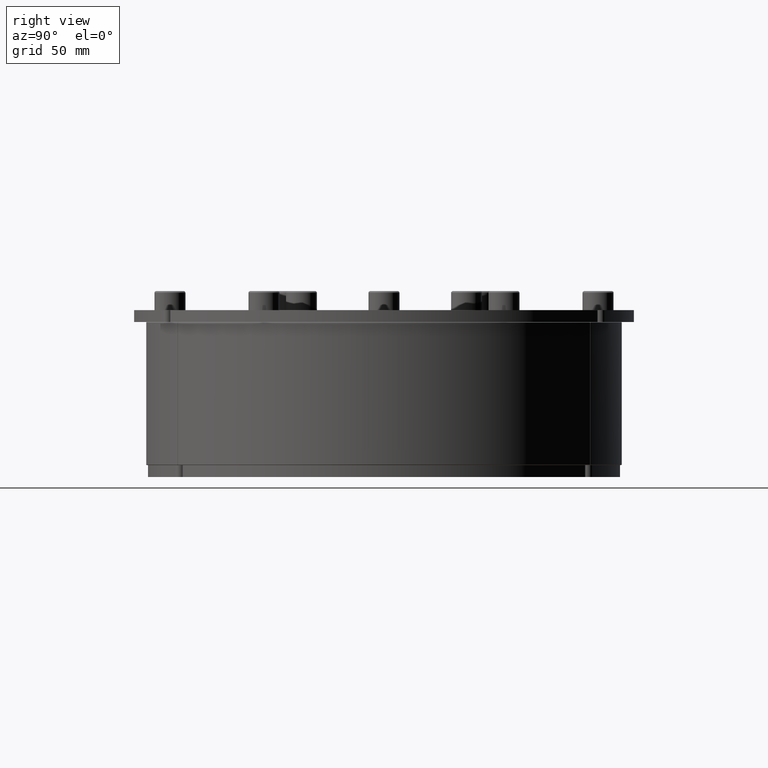
[diagram: clean part render]
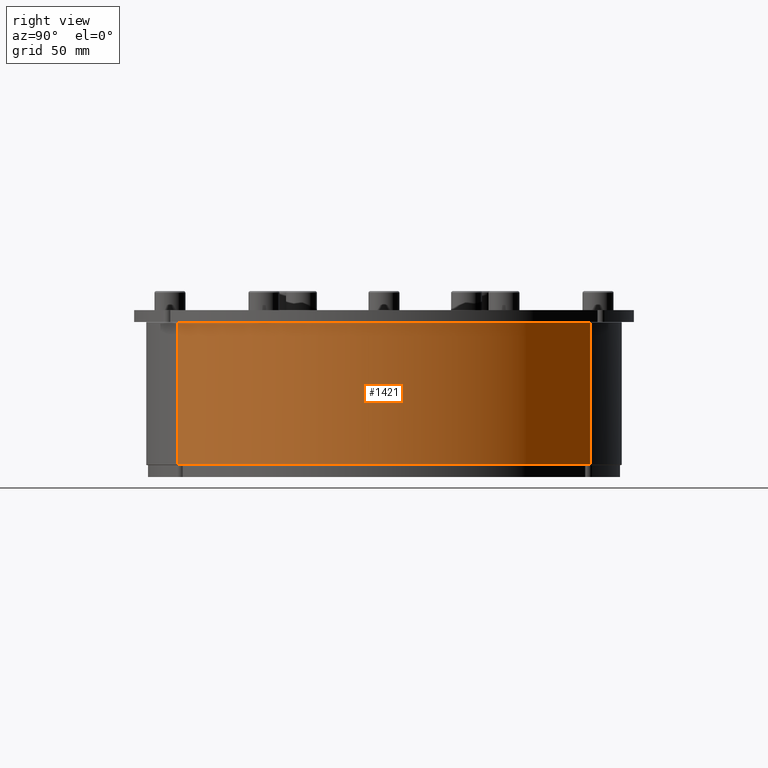
[diagram: same view with one face highlighted and labeled with its STEP entity id]
A machine part, right view. The second image highlights one B-rep face of the part: STEP entity #1421.
In plain terms, the highlighted cylindrical surface (partial cylindrical patch) has radius 100 mm, axis along (0, 0, 1).
Its self-contained STEP definition (entity closure, byte-faithful):
#582=CARTESIAN_POINT('',(49.739184254084925,86.752599671353877,0.3));
#583=VERTEX_POINT('',#582);
#705=CARTESIAN_POINT('',(-99.999547286776476,0.300902708124351,0.3));
#706=VERTEX_POINT('',#705);
#747=CARTESIAN_POINT('',(49.739184254084932,86.752599671353892,59.699999999999996));
#748=VERTEX_POINT('',#747);
#779=CARTESIAN_POINT('',(49.739184254084925,86.752599671353877,0.3));
#780=DIRECTION('',(0.0,0.0,1.0));
#781=VECTOR('',#780,59.399999999999999);
#782=LINE('',#779,#781);
#783=EDGE_CURVE('',#583,#748,#782,.T.);
#966=CARTESIAN_POINT('',(-99.999547286776476,0.300902708124367,59.699999999999996));
#967=VERTEX_POINT('',#966);
#1000=CARTESIAN_POINT('',(-99.999547286776476,0.300902708124367,59.699999999999996));
#1001=DIRECTION('',(0.0,0.0,-1.0));
#1002=VECTOR('',#1001,59.399999999999999);
#1003=LINE('',#1000,#1002);
#1004=EDGE_CURVE('',#967,#706,#1003,.T.);
#1184=CARTESIAN_POINT('',(0.0,0.0,59.699999999999996));
#1185=DIRECTION('',(0.0,0.0,1.0));
#1186=DIRECTION('',(-0.5,0.866025403784439,0.0));
#1187=AXIS2_PLACEMENT_3D('',#1184,#1185,#1186);
#1188=CIRCLE('',#1187,99.999999999999986);
#1189=EDGE_CURVE('',#748,#967,#1188,.T.);
#1238=CARTESIAN_POINT('',(0.0,0.0,0.3));
#1239=DIRECTION('',(0.0,0.0,-1.0));
#1240=DIRECTION('',(-0.5,0.866025403784439,0.0));
#1241=AXIS2_PLACEMENT_3D('',#1238,#1239,#1240);
#1242=CIRCLE('',#1241,99.999999999999986);
#1243=EDGE_CURVE('',#706,#583,#1242,.T.);
#1410=CARTESIAN_POINT('',(0.0,0.0,0.0));
#1411=DIRECTION('',(0.0,0.0,1.0));
#1412=DIRECTION('',(-0.5,-0.866025403784439,0.0));
#1413=AXIS2_PLACEMENT_3D('',#1410,#1411,#1412);
#1414=CYLINDRICAL_SURFACE('',#1413,100.0);
#1415=ORIENTED_EDGE('',*,*,#1004,.F.);
#1416=ORIENTED_EDGE('',*,*,#1189,.F.);
#1417=ORIENTED_EDGE('',*,*,#783,.F.);
#1418=ORIENTED_EDGE('',*,*,#1243,.F.);
#1419=EDGE_LOOP('',(#1415,#1416,#1417,#1418));
#1420=FACE_OUTER_BOUND('',#1419,.T.);
#1421=ADVANCED_FACE('',(#1420),#1414,.T.);